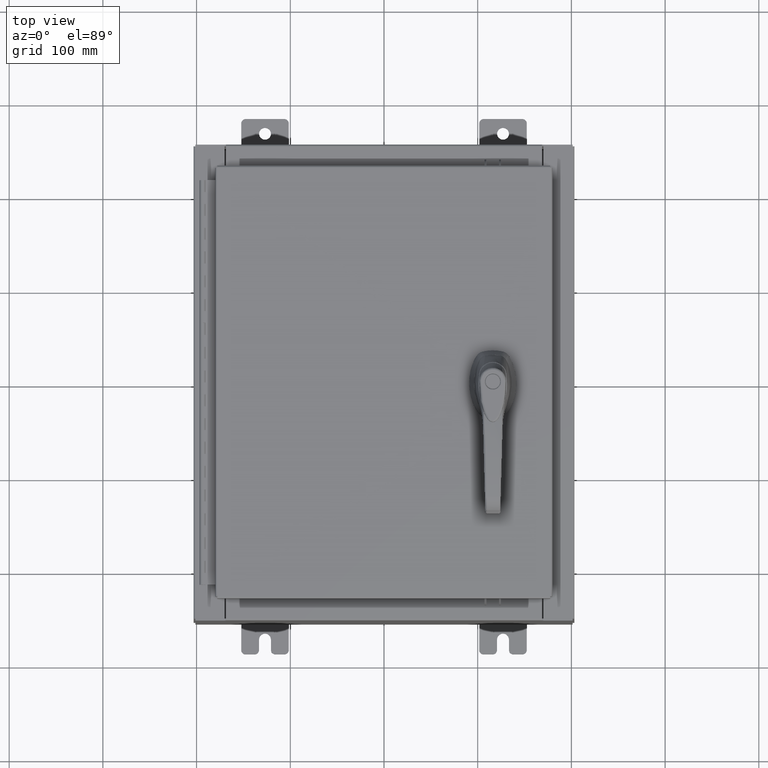
[diagram: clean part render]
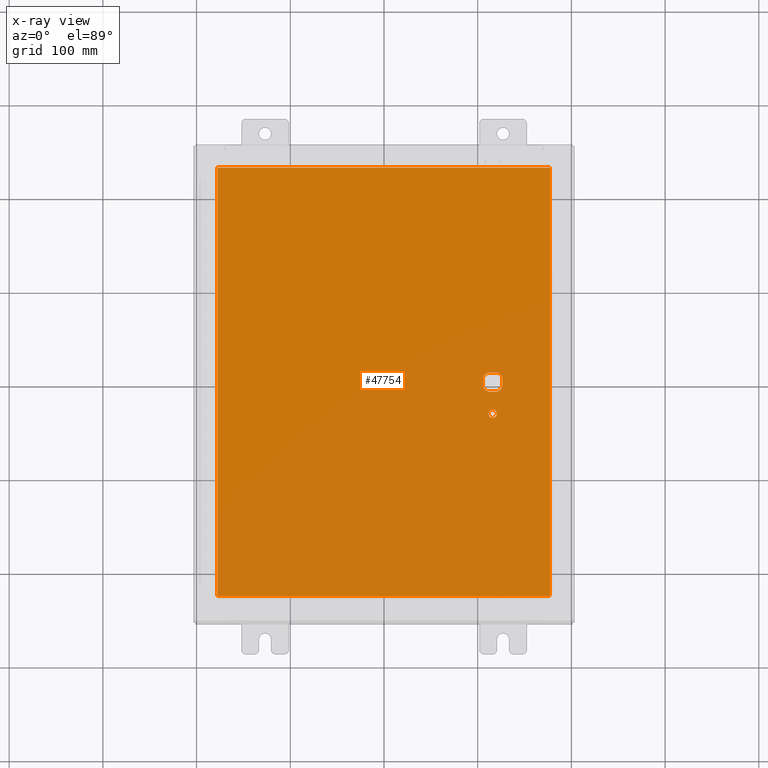
[diagram: x-ray — body ghosted, one internal face saturated and labeled with its STEP entity id]
A machine part, top view, then the same camera in x-ray: the body is ghosted and one INTERNAL B-rep face — a face not visible from any outside direction — is saturated and labeled: STEP entity #47754.
In plain terms, the highlighted planar face has unit normal (0, 0, -1).
Its self-contained STEP definition (entity closure, byte-faithful):
#1251 = ORIENTED_EDGE ( 'NONE', *, *, #100568, .T. ) ;
#1343 = EDGE_CURVE ( 'NONE', #76856, #58765, #81825, .T. ) ;
#1436 = CARTESIAN_POINT ( 'NONE',  ( 4.980999999999927900, 0.0000000000000000000, -0.07470000000000003000 ) ) ;
#5177 = DIRECTION ( 'NONE',  ( -1.000000000000000000, -0.0000000000000000000, -0.0000000000000000000 ) ) ;
#7096 = VERTEX_POINT ( 'NONE', #87772 ) ;
#7259 = ORIENTED_EDGE ( 'NONE', *, *, #109456, .T. ) ;
#7297 = VERTEX_POINT ( 'NONE', #83193 ) ;
#7778 = EDGE_CURVE ( 'NONE', #58765, #27390, #66426, .T. ) ;
#10085 = DIRECTION ( 'NONE',  ( 0.0000000000000000000, -1.000000000000000000, 0.0000000000000000000 ) ) ;
#11440 = AXIS2_PLACEMENT_3D ( 'NONE', #18987, #78591, #27560 ) ;
#12893 = AXIS2_PLACEMENT_3D ( 'NONE', #79493, #28458, #88085 ) ;
#13383 = CARTESIAN_POINT ( 'NONE',  ( 4.175000000000076200, 0.2002273707563080300, -0.07470000000000003000 ) ) ;
#14324 = EDGE_CURVE ( 'NONE', #74633, #76856, #87907, .T. ) ;
#14335 = DIRECTION ( 'NONE',  ( -1.000000000000000000, 0.0000000000000000000, 0.0000000000000000000 ) ) ;
#16980 = ORIENTED_EDGE ( 'NONE', *, *, #89755, .T. ) ;
#17683 = CARTESIAN_POINT ( 'NONE',  ( 4.175000000000076200, -0.2002273707563079800, -0.07470000000000003000 ) ) ;
#17846 = CARTESIAN_POINT ( 'NONE',  ( -6.990299999999996800, -9.006299999999997800, -0.07470000000000000300 ) ) ;
#18987 = CARTESIAN_POINT ( 'NONE',  ( 4.578000000000002100, -1.338000000000000100, -0.07470000000000003000 ) ) ;
#19946 = LINE ( 'NONE', #105807, #107999 ) ;
#20004 = CARTESIAN_POINT ( 'NONE',  ( 6.990300000000002200, -9.006299999999997800, -0.07470000000000000300 ) ) ;
#20740 = EDGE_CURVE ( 'NONE', #7297, #7096, #49809, .T. ) ;
#21280 = VECTOR ( 'NONE', #22478, 39.37007874015748100 ) ;
#22478 = DIRECTION ( 'NONE',  ( 0.0000000000000000000, -1.000000000000000000, 0.0000000000000000000 ) ) ;
#23739 = VECTOR ( 'NONE', #10085, 39.37007874015748100 ) ;
#26196 = CARTESIAN_POINT ( 'NONE',  ( 0.0000000000000000000, 0.0000000000000000000, -0.07470000000000000300 ) ) ;
#26226 = AXIS2_PLACEMENT_3D ( 'NONE', #36044, #95680, #44610 ) ;
#27390 = VERTEX_POINT ( 'NONE', #102165 ) ;
#27560 = DIRECTION ( 'NONE',  ( -1.000000000000000000, 0.0000000000000000000, 0.0000000000000000000 ) ) ;
#27925 = VECTOR ( 'NONE', #48985, 39.37007874015748100 ) ;
#28458 = DIRECTION ( 'NONE',  ( -0.0000000000000000000, -0.0000000000000000000, 1.000000000000000000 ) ) ;
#29123 = DIRECTION ( 'NONE',  ( 1.000000000000000000, 0.0000000000000000000, 0.0000000000000000000 ) ) ;
#30833 = ORIENTED_EDGE ( 'NONE', *, *, #7778, .F. ) ;
#31255 = FACE_BOUND ( 'NONE', #60572, .T. ) ;
#31698 = CARTESIAN_POINT ( 'NONE',  ( 4.980999999999927900, -0.2002273707563080300, -0.07470000000000003000 ) ) ;
#32033 = AXIS2_PLACEMENT_3D ( 'NONE', #49343, #109041, #57895 ) ;
#32539 = LINE ( 'NONE', #80520, #35215 ) ;
#32951 = ORIENTED_EDGE ( 'NONE', *, *, #1343, .F. ) ;
#34747 = DIRECTION ( 'NONE',  ( 0.0000000000000000000, 0.0000000000000000000, -1.000000000000000000 ) ) ;
#35215 = VECTOR ( 'NONE', #29123, 39.37007874015748100 ) ;
#35942 = VERTEX_POINT ( 'NONE', #44495 ) ;
#36044 = CARTESIAN_POINT ( 'NONE',  ( 4.578000000000002100, 0.0000000000000000000, -0.07470000000000003000 ) ) ;
#36559 = DIRECTION ( 'NONE',  ( -0.0000000000000000000, -0.0000000000000000000, 1.000000000000000000 ) ) ;
#37173 = VERTEX_POINT ( 'NONE', #31698 ) ;
#38241 = CIRCLE ( 'NONE', #26226, 0.4499999999999156900 ) ;
#39126 = CARTESIAN_POINT ( 'NONE',  ( 6.990300000000002200, 9.006300000000001300, -0.07470000000000076600 ) ) ;
#40276 = ORIENTED_EDGE ( 'NONE', *, *, #107775, .F. ) ;
#42615 = CARTESIAN_POINT ( 'NONE',  ( 4.749500000000002100, -1.338000000000000100, -0.07470000000000003000 ) ) ;
#43821 = VECTOR ( 'NONE', #5177, 39.37007874015748100 ) ;
#43855 = VERTEX_POINT ( 'NONE', #13383 ) ;
#44495 = CARTESIAN_POINT ( 'NONE',  ( 4.377772629243692900, -0.4029999999999250300, -0.07470000000000003000 ) ) ;
#44610 = DIRECTION ( 'NONE',  ( -1.000000000000000000, 0.0000000000000000000, 0.0000000000000000000 ) ) ;
#45867 = CARTESIAN_POINT ( 'NONE',  ( 4.778227370756312100, -0.4029999999999252000, -0.07470000000000003000 ) ) ;
#46413 = CIRCLE ( 'NONE', #108036, 0.1715000000000000700 ) ;
#46666 = ORIENTED_EDGE ( 'NONE', *, *, #14324, .F. ) ;
#47754 = ADVANCED_FACE ( 'NONE', ( #73905, #99285, #31255 ), #77223, .T. ) ;
#47793 = CARTESIAN_POINT ( 'NONE',  ( 4.578000000000002100, 0.0000000000000000000, -0.07470000000000003000 ) ) ;
#48116 = EDGE_CURVE ( 'NONE', #35942, #65952, #32539, .T. ) ;
#48985 = DIRECTION ( 'NONE',  ( 1.000000000000000000, -0.0000000000000000000, -0.0000000000000000000 ) ) ;
#49343 = CARTESIAN_POINT ( 'NONE',  ( 4.578000000000002100, 0.0000000000000000000, -0.07470000000000003000 ) ) ;
#49809 = CIRCLE ( 'NONE', #32033, 0.4499999999999156900 ) ;
#54078 = EDGE_CURVE ( 'NONE', #43855, #67960, #19946, .T. ) ;
#54663 = DIRECTION ( 'NONE',  ( 0.0000000000000000000, -1.000000000000000000, 0.0000000000000000000 ) ) ;
#55448 = EDGE_CURVE ( 'NONE', #7096, #99364, #66415, .T. ) ;
#56313 = DIRECTION ( 'NONE',  ( -1.000000000000000000, 8.881784197001256300E-016, 0.0000000000000000000 ) ) ;
#57537 = CARTESIAN_POINT ( 'NONE',  ( -6.990299999999997700, -9.006299999999997800, -0.07470000000000021100 ) ) ;
#57895 = DIRECTION ( 'NONE',  ( -1.000000000000000000, 0.0000000000000000000, 0.0000000000000000000 ) ) ;
#58765 = VERTEX_POINT ( 'NONE', #89555 ) ;
#59156 = VECTOR ( 'NONE', #108029, 39.37007874015748100 ) ;
#60572 = EDGE_LOOP ( 'NONE', ( #1251, #61600, #78872, #98353, #16980, #61720, #88317, #75193 ) ) ;
#61124 = ORIENTED_EDGE ( 'NONE', *, *, #88660, .T. ) ;
#61600 = ORIENTED_EDGE ( 'NONE', *, *, #109424, .F. ) ;
#61720 = ORIENTED_EDGE ( 'NONE', *, *, #54078, .T. ) ;
#61891 = CIRCLE ( 'NONE', #12893, 0.4499999999999156900 ) ;
#62325 = AXIS2_PLACEMENT_3D ( 'NONE', #26196, #34747, #94389 ) ;
#62792 = VERTEX_POINT ( 'NONE', #42615 ) ;
#63542 = VERTEX_POINT ( 'NONE', #68873 ) ;
#64903 = CARTESIAN_POINT ( 'NONE',  ( -6.990299999999997700, 9.006300000000001300, -0.07470000000000019700 ) ) ;
#65952 = VERTEX_POINT ( 'NONE', #45867 ) ;
#66415 = LINE ( 'NONE', #73968, #69086 ) ;
#66426 = LINE ( 'NONE', #39126, #43821 ) ;
#66554 = LINE ( 'NONE', #64903, #21280 ) ;
#67960 = VERTEX_POINT ( 'NONE', #17683 ) ;
#68314 = EDGE_LOOP ( 'NONE', ( #32951, #46666, #40276, #30833 ) ) ;
#68873 = CARTESIAN_POINT ( 'NONE',  ( 4.406500000000002100, -1.338000000000000100, -0.07470000000000003000 ) ) ;
#69086 = VECTOR ( 'NONE', #14335, 39.37007874015748100 ) ;
#69405 = CARTESIAN_POINT ( 'NONE',  ( 6.990300000000002200, -9.006299999999997800, -0.07470000000000021100 ) ) ;
#69799 = EDGE_CURVE ( 'NONE', #67960, #35942, #72490, .T. ) ;
#72490 = CIRCLE ( 'NONE', #93402, 0.4499999999999156900 ) ;
#73905 = FACE_BOUND ( 'NONE', #86760, .T. ) ;
#73968 = CARTESIAN_POINT ( 'NONE',  ( 0.0000000000000000000, 0.4029999999999252000, -0.07470000000000003000 ) ) ;
#74633 = VERTEX_POINT ( 'NONE', #17846 ) ;
#75193 = ORIENTED_EDGE ( 'NONE', *, *, #48116, .T. ) ;
#76856 = VERTEX_POINT ( 'NONE', #20004 ) ;
#77223 = PLANE ( 'NONE',  #62325 ) ;
#78591 = DIRECTION ( 'NONE',  ( -0.0000000000000000000, -0.0000000000000000000, 1.000000000000000000 ) ) ;
#78872 = ORIENTED_EDGE ( 'NONE', *, *, #20740, .T. ) ;
#79493 = CARTESIAN_POINT ( 'NONE',  ( 4.578000000000002100, 0.0000000000000000000, -0.07470000000000003000 ) ) ;
#80520 = CARTESIAN_POINT ( 'NONE',  ( 0.0000000000000000000, -0.4029999999999252000, -0.07470000000000003000 ) ) ;
#81825 = LINE ( 'NONE', #69405, #59156 ) ;
#83193 = CARTESIAN_POINT ( 'NONE',  ( 4.980999999999927900, 0.2002273707563080300, -0.07470000000000003000 ) ) ;
#86760 = EDGE_LOOP ( 'NONE', ( #7259, #61124 ) ) ;
#87398 = CIRCLE ( 'NONE', #11440, 0.1715000000000000700 ) ;
#87634 = CARTESIAN_POINT ( 'NONE',  ( 4.578000000000002100, -1.338000000000000100, -0.07470000000000003000 ) ) ;
#87772 = CARTESIAN_POINT ( 'NONE',  ( 4.778227370756312100, 0.4029999999999250300, -0.07470000000000003000 ) ) ;
#87907 = LINE ( 'NONE', #57537, #27925 ) ;
#88085 = DIRECTION ( 'NONE',  ( -1.000000000000000000, 0.0000000000000000000, 0.0000000000000000000 ) ) ;
#88317 = ORIENTED_EDGE ( 'NONE', *, *, #69799, .T. ) ;
#88660 = EDGE_CURVE ( 'NONE', #63542, #62792, #87398, .T. ) ;
#89555 = CARTESIAN_POINT ( 'NONE',  ( 6.990300000000001300, 9.006300000000001300, -0.07470000000000000300 ) ) ;
#89755 = EDGE_CURVE ( 'NONE', #99364, #43855, #61891, .T. ) ;
#91738 = LINE ( 'NONE', #1436, #23739 ) ;
#93402 = AXIS2_PLACEMENT_3D ( 'NONE', #47793, #107463, #56313 ) ;
#94389 = DIRECTION ( 'NONE',  ( -1.000000000000000000, 0.0000000000000000000, -0.0000000000000000000 ) ) ;
#95680 = DIRECTION ( 'NONE',  ( -0.0000000000000000000, -0.0000000000000000000, 1.000000000000000000 ) ) ;
#96209 = DIRECTION ( 'NONE',  ( -1.000000000000000000, 0.0000000000000000000, 0.0000000000000000000 ) ) ;
#98353 = ORIENTED_EDGE ( 'NONE', *, *, #55448, .T. ) ;
#99285 = FACE_OUTER_BOUND ( 'NONE', #68314, .T. ) ;
#99364 = VERTEX_POINT ( 'NONE', #104009 ) ;
#100568 = EDGE_CURVE ( 'NONE', #65952, #37173, #38241, .T. ) ;
#102165 = CARTESIAN_POINT ( 'NONE',  ( -6.990299999999997700, 9.006299999999999500, -0.07470000000000000300 ) ) ;
#104009 = CARTESIAN_POINT ( 'NONE',  ( 4.377772629243692900, 0.4029999999999252000, -0.07470000000000003000 ) ) ;
#105807 = CARTESIAN_POINT ( 'NONE',  ( 4.175000000000076200, 0.0000000000000000000, -0.07470000000000003000 ) ) ;
#107463 = DIRECTION ( 'NONE',  ( -0.0000000000000000000, -0.0000000000000000000, 1.000000000000000000 ) ) ;
#107775 = EDGE_CURVE ( 'NONE', #27390, #74633, #66554, .T. ) ;
#107999 = VECTOR ( 'NONE', #54663, 39.37007874015748100 ) ;
#108029 = DIRECTION ( 'NONE',  ( 0.0000000000000000000, 1.000000000000000000, 0.0000000000000000000 ) ) ;
#108036 = AXIS2_PLACEMENT_3D ( 'NONE', #87634, #36559, #96209 ) ;
#109041 = DIRECTION ( 'NONE',  ( -0.0000000000000000000, -0.0000000000000000000, 1.000000000000000000 ) ) ;
#109424 = EDGE_CURVE ( 'NONE', #7297, #37173, #91738, .T. ) ;
#109456 = EDGE_CURVE ( 'NONE', #62792, #63542, #46413, .T. ) ;